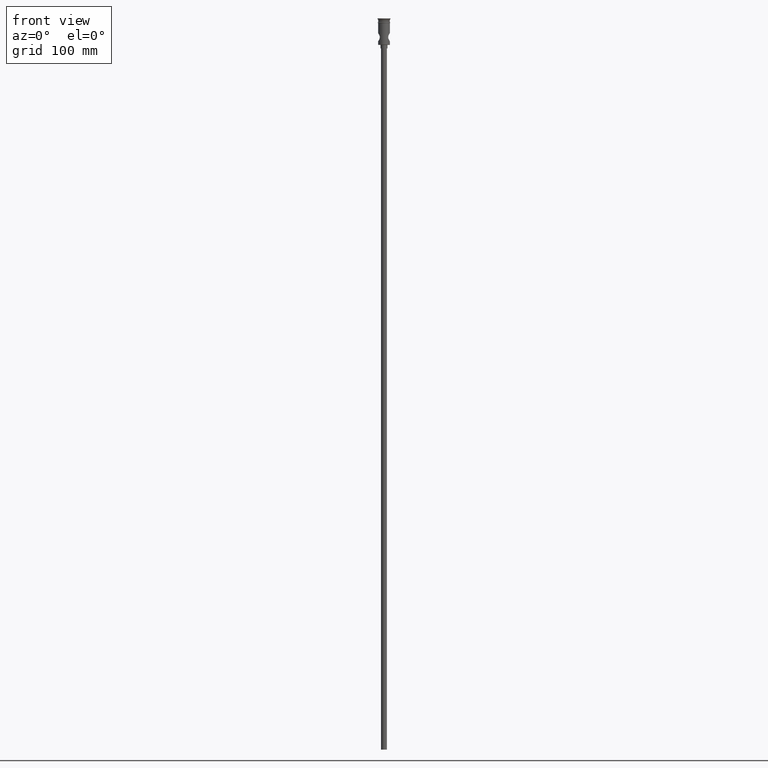
[diagram: clean part render]
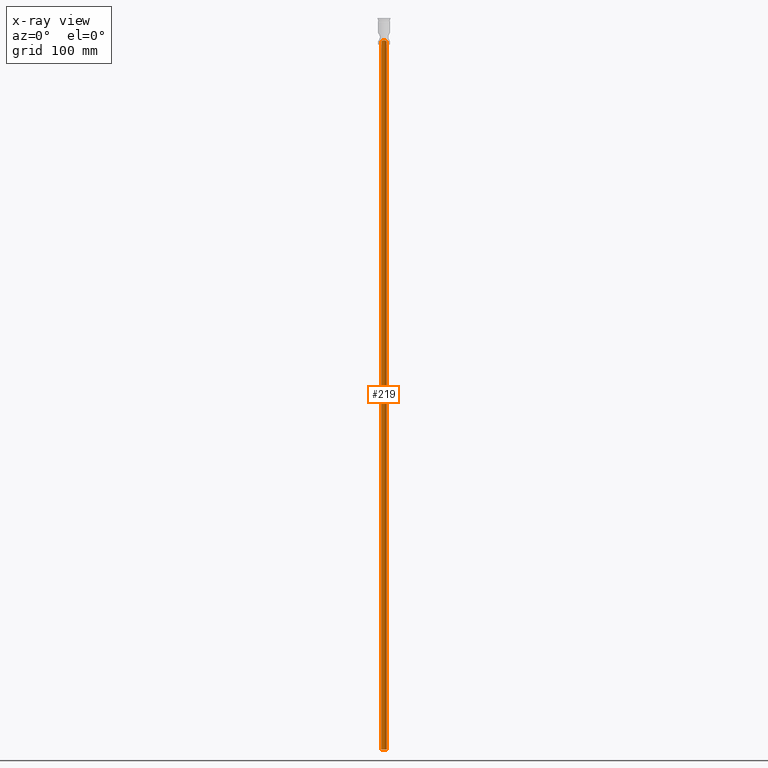
[diagram: x-ray — body ghosted, one internal face saturated and labeled with its STEP entity id]
A machine part, front view, then the same camera in x-ray: the body is ghosted and one INTERNAL B-rep face — a face not visible from any outside direction — is saturated and labeled: STEP entity #219.
In plain terms, the highlighted cylindrical surface (edge-blend (fillet) strip) has radius 2.25 mm, axis along (-0, -0, -1).
Its self-contained STEP definition (entity closure, byte-faithful):
#43 = CARTESIAN_POINT ( 'NONE',  ( -1.942436584114296760, 1.144722481710678030, -19.30999928086847461 ) ) ;
#62 = CARTESIAN_POINT ( 'NONE',  ( 1.789075748201162108, 1.394191445469598722, -19.21833826051311434 ) ) ;
#76 = DIRECTION ( 'NONE',  ( -1.000000000000000000, 0.000000000000000000, 0.000000000000000000 ) ) ;
#92 = EDGE_CURVE ( 'NONE', #452, #864, #155, .T. ) ;
#111 = VECTOR ( 'NONE', #1161, 1000.000000000000000 ) ;
#127 = CYLINDRICAL_SURFACE ( 'NONE', #1069, 2.250000000000000444 ) ;
#155 = CIRCLE ( 'NONE', #370, 2.250000000000000444 ) ;
#171 = CARTESIAN_POINT ( 'NONE',  ( 2.250000000000000444, 2.755455298081544778E-16, 0.001000000000028755665 ) ) ;
#180 = VERTEX_POINT ( 'NONE', #1090 ) ;
#219 = ADVANCED_FACE ( 'NONE', ( #240 ), #127, .F. ) ;
#231 = CARTESIAN_POINT ( 'NONE',  ( 1.955634544950294096, 1.151442147577716124, -19.31717052018207426 ) ) ;
#234 = ORIENTED_EDGE ( 'NONE', *, *, #92, .T. ) ;
#240 = FACE_OUTER_BOUND ( 'NONE', #755, .T. ) ;
#246 = CARTESIAN_POINT ( 'NONE',  ( 2.129222258077476226, 0.7422054627007588223, -19.42330116567810094 ) ) ;
#247 = ORIENTED_EDGE ( 'NONE', *, *, #282, .T. ) ;
#278 = CARTESIAN_POINT ( 'NONE',  ( -1.486101087930515652, 1.695403733361556586, -19.06405166588539757 ) ) ;
#282 = EDGE_CURVE ( 'NONE', #180, #285, #867, .T. ) ;
#285 = VERTEX_POINT ( 'NONE', #1168 ) ;
#292 = CARTESIAN_POINT ( 'NONE',  ( -2.172856605862467205, 0.6033802211928143144, -19.45083278368169033 ) ) ;
#359 = CARTESIAN_POINT ( 'NONE',  ( 2.234602344594331491, 0.3033102270919886823, -19.49004238790224264 ) ) ;
#370 = AXIS2_PLACEMENT_3D ( 'NONE', #871, #672, #76 ) ;
#398 = CARTESIAN_POINT ( 'NONE',  ( -0.7405438485911071123, 2.129703782927348854, -18.77837864873280793 ) ) ;
#452 = VERTEX_POINT ( 'NONE', #482 ) ;
#482 = CARTESIAN_POINT ( 'NONE',  ( -2.250000000000000444, 0.000000000000000000, -622.4999999999998863 ) ) ;
#497 = CARTESIAN_POINT ( 'NONE',  ( 0.000000000000000000, 0.000000000000000000, 0.001000000000028755665 ) ) ;
#509 = CARTESIAN_POINT ( 'NONE',  ( -0.5978997219343202829, 2.174283081029379616, -18.74298936302307084 ) ) ;
#611 = LINE ( 'NONE', #635, #111 ) ;
#615 = CARTESIAN_POINT ( 'NONE',  ( -1.137071909613136977, 1.946789528568158678, -18.91013753428407895 ) ) ;
#635 = CARTESIAN_POINT ( 'NONE',  ( -2.250000000000000444, 0.000000000000000000, 0.001000000000028755665 ) ) ;
#638 = CARTESIAN_POINT ( 'NONE',  ( -1.010948936431294465, 2.015446760058331677, -18.86234178184922428 ) ) ;
#672 = DIRECTION ( 'NONE',  ( 0.000000000000000000, 0.000000000000000000, -1.000000000000000000 ) ) ;
#738 = CARTESIAN_POINT ( 'NONE',  ( 1.137018291772383005, 1.946832527748922681, -18.91011232143838683 ) ) ;
#743 = CARTESIAN_POINT ( 'NONE',  ( -2.250000000000000444, 0.1533011007607881504, -19.49999999999999289 ) ) ;
#755 = EDGE_LOOP ( 'NONE', ( #1209, #247, #760, #234 ) ) ;
#760 = ORIENTED_EDGE ( 'NONE', *, *, #906, .T. ) ;
#798 = DIRECTION ( 'NONE',  ( -1.000000000000000000, 0.000000000000000000, 0.000000000000000000 ) ) ;
#815 = CARTESIAN_POINT ( 'NONE',  ( 2.173783163195007084, 0.6000929025867463018, -19.45141731343486313 ) ) ;
#833 = CARTESIAN_POINT ( 'NONE',  ( 1.484258646410845373, 1.697053836921559533, -19.06314805567991755 ) ) ;
#839 = CARTESIAN_POINT ( 'NONE',  ( -2.128305117303373795, 0.7445317478142488010, -19.42273635989037217 ) ) ;
#859 = CARTESIAN_POINT ( 'NONE',  ( 0.5987953167195502191, 2.174148723038048292, -18.74310093710721148 ) ) ;
#864 = VERTEX_POINT ( 'NONE', #1250 ) ;
#867 = B_SPLINE_CURVE_WITH_KNOTS ( 'NONE', 3,
 ( #1042, #1372, #359, #815, #246, #231, #62, #833, #1305, #738, #1393, #1073, #859, #1277, #1183, #1414, #1291, #509, #398, #638, #615, #965, #278, #1052, #1420, #43, #1081, #839, #292, #945, #743, #1299 ),
 .UNSPECIFIED., .F., .F.,
 ( 4, 2, 2, 2, 2, 2, 2, 2, 2, 2, 2, 2, 2, 2, 2, 4 ),
 ( 0.007250279371620002231, 0.007702898212976278663, 0.008155517054332555096, 0.009060754737045109697, 0.009513373578401387864, 0.009965992419757666032, 0.01041861126111394246, 0.01087123010247022063, 0.01132384894382649880, 0.01177646778518277697, 0.01222908662653905687, 0.01268170546789533504, 0.01313432430925161321, 0.01358694315060789137, 0.01403956199196416954, 0.01449218083332044944 ),
 .UNSPECIFIED. ) ;
#871 = CARTESIAN_POINT ( 'NONE',  ( 0.000000000000000000, 0.000000000000000000, -622.4999999999998863 ) ) ;
#872 = VECTOR ( 'NONE', #1297, 1000.000000000000000 ) ;
#906 = EDGE_CURVE ( 'NONE', #285, #452, #611, .T. ) ;
#921 = DIRECTION ( 'NONE',  ( -0.000000000000000000, -0.000000000000000000, -1.000000000000000000 ) ) ;
#922 = EDGE_CURVE ( 'NONE', #180, #864, #1172, .T. ) ;
#945 = CARTESIAN_POINT ( 'NONE',  ( -2.234060880844048302, 0.3071571285989715405, -19.48969469876804794 ) ) ;
#965 = CARTESIAN_POINT ( 'NONE',  ( -1.374236491424306372, 1.787287347298053497, -19.01072979112705497 ) ) ;
#1042 = CARTESIAN_POINT ( 'NONE',  ( 2.250000000000000444, 1.892513914771209576E-20, -19.50000000000000000 ) ) ;
#1052 = CARTESIAN_POINT ( 'NONE',  ( -1.688509612554014439, 1.493929566933212660, -19.16717237916633465 ) ) ;
#1069 = AXIS2_PLACEMENT_3D ( 'NONE', #497, #921, #798 ) ;
#1073 = CARTESIAN_POINT ( 'NONE',  ( 0.7394799681105336253, 2.130006936881565061, -18.77813085036313723 ) ) ;
#1081 = CARTESIAN_POINT ( 'NONE',  ( -2.013643463065571293, 1.014519689062937324, -19.35264097590579624 ) ) ;
#1090 = CARTESIAN_POINT ( 'NONE',  ( 2.250000000000000444, 1.892513914771209576E-20, -19.50000000000000000 ) ) ;
#1161 = DIRECTION ( 'NONE',  ( -0.000000000000000000, -0.000000000000000000, -1.000000000000000000 ) ) ;
#1168 = CARTESIAN_POINT ( 'NONE',  ( -2.250000000000000444, 0.000000000000000000, -19.50000000000000000 ) ) ;
#1172 = LINE ( 'NONE', #171, #872 ) ;
#1183 = CARTESIAN_POINT ( 'NONE',  ( 0.1518657931922163529, 2.249937794229810883, -18.68100353014522952 ) ) ;
#1209 = ORIENTED_EDGE ( 'NONE', *, *, #922, .F. ) ;
#1250 = CARTESIAN_POINT ( 'NONE',  ( 2.250000000000000444, 2.755455298081544778E-16, -622.4999999999998863 ) ) ;
#1277 = CARTESIAN_POINT ( 'NONE',  ( 0.3017550044953464794, 2.234820444347879409, -18.69390107512714394 ) ) ;
#1291 = CARTESIAN_POINT ( 'NONE',  ( -0.3040462924481899809, 2.234400780072425263, -18.69424399713910390 ) ) ;
#1297 = DIRECTION ( 'NONE',  ( -0.000000000000000000, -0.000000000000000000, -1.000000000000000000 ) ) ;
#1299 = CARTESIAN_POINT ( 'NONE',  ( -2.250000000000000444, 0.000000000000000000, -19.50000000000000000 ) ) ;
#1305 = CARTESIAN_POINT ( 'NONE',  ( 1.374440444067672074, 1.787143237862401479, -19.01081876934686932 ) ) ;
#1372 = CARTESIAN_POINT ( 'NONE',  ( 2.250000000000000000, 0.1511344444814126664, -19.50000000000000355 ) ) ;
#1393 = CARTESIAN_POINT ( 'NONE',  ( 1.008205844767431580, 2.016750145401540628, -18.86140864329544797 ) ) ;
#1414 = CARTESIAN_POINT ( 'NONE',  ( -0.1500169204542479151, 2.250061825955684824, -18.68089943599752090 ) ) ;
#1420 = CARTESIAN_POINT ( 'NONE',  ( -1.779756883055182648, 1.384165770656526240, -19.21723016255077710 ) ) ;